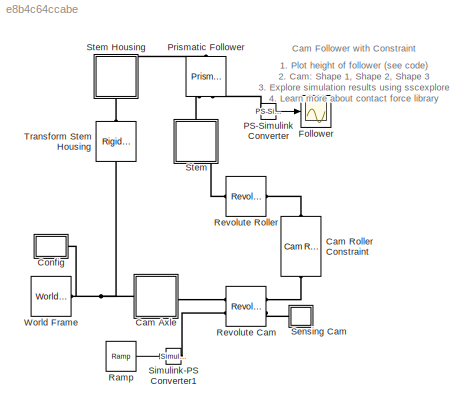
MODEL slx_e8b4c64ccabe
KIND model
CONFIG AbsTol = auto
CONFIG EnableMultiTasking = off
CONFIG FixedStep = auto
CONFIG MaxStep = auto
CONFIG MinStep = auto
CONFIG RelTol = 1e-3
CONFIG SampleTimeConstraint = Unconstrained
CONFIG Solver = VariableStepAuto
CONFIG SolverName = VariableStepAuto
CONFIG StartFcn = tic;
CONFIG StartTime = 0.0
CONFIG StopFcn = Elapsed_Sim_Time = toc;\ndisp(['Elapsed Sim Time = ' num2str(Elapsed_Sim_Time)]);\n
CONFIG StopTime = 4
WORKSPACE source: MATLAB code (in-file)
WORKSPACE code: hole_profile = 0.005*[cosd(linspace(0,360,100)); sind(linspace(0,360,100))]';
WORKSPACE N = 100
WORKSPACE roller_radius = 0.02
WORKSPACE q = linspace(1/N,1,N)*2*pi
WORKSPACE r = 4+sin(2*q)+0.3*cos(3*q)
WORKSPACE c = cos(q)
WORKSPACE s = sin(q)
WORKSPACE profile_irr_ellipse = [r'.*c' r'.*s']/100
WORKSPACE code: extrdat_irr_ellipse = [profile_irr_ellipse; flipud(hole_profile); profile_irr_ellipse(end,:)];
WORKSPACE dvec = linspace(-1,1,20)'
WORKSPACE side = 0.05
WORKSPACE profile_square = [...
WORKSPACE code: dvec -ones(length(dvec),1);...
WORKSPACE code: ones(length(dvec)-1,1) dvec(2:end);...
WORKSPACE code: flipud(dvec(1:end-1)) ones(length(dvec)-1,1);...
WORKSPACE code: -ones(length(dvec)-2,1) flipud(dvec(2:end-1))]*side/2;
WORKSPACE code: extrdat_square = [profile_square; flipud(hole_profile);profile_square(end,:)];
WORKSPACE angles = [0:359]'
WORKSPACE profile_snowflake = .004 * (12.5 + cosd(6 * (angles - 30))) .* [cosd(angles) sind(angles)]
WORKSPACE code: extrdat_snowflake = [flipud(profile_snowflake); hole_profile*14;profile_snowflake(1,:)];
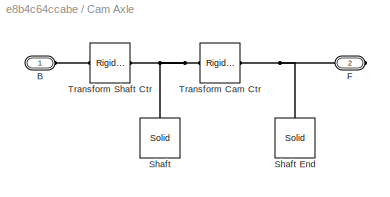
BLOCK [SubSystem] Cam Axle
  Ports = [0, 0, 0, 0, 0, 1, 1]
  RequestExecContextInheritance = off
BLOCK [PMIOPort] Cam Axle/B
  Side = Left
BLOCK [PMIOPort] Cam Axle/F
  Port = 2
  Side = Right
BLOCK [Reference] Cam Axle/Shaft  REF=sm_lib/Body Elements/Solid
  Ports = [0, 0, 0, 0, 0, 0, 1]
  SourceBlock = sm_lib/Body Elements/Solid
  SourceProductBaseCode = MS
  SourceProductName = Simscape Multibody
  SourceType = Solid
BLOCK [Reference] Cam Axle/Shaft End  REF=sm_lib/Body Elements/Solid
  Ports = [0, 0, 0, 0, 0, 0, 1]
  SourceBlock = sm_lib/Body Elements/Solid
  SourceProductBaseCode = MS
  SourceProductName = Simscape Multibody
  SourceType = Solid
BLOCK [Reference] Cam Axle/Transform Cam Ctr  REF=sm_lib/Frames and
Transforms/Rigid
Transform
  Ports = [0, 0, 0, 0, 0, 1, 1]
  SourceBlock = sm_lib/Frames and\nTransforms/Rigid\nTransform
  SourceProductBaseCode = MS
  SourceProductName = Simscape Multibody
  SourceType = Rigid\nTransform
BLOCK [Reference] Cam Axle/Transform Shaft Ctr  REF=sm_lib/Frames and
Transforms/Rigid
Transform
  Ports = [0, 0, 0, 0, 0, 1, 1]
  SourceBlock = sm_lib/Frames and\nTransforms/Rigid\nTransform
  SourceProductBaseCode = MS
  SourceProductName = Simscape Multibody
  SourceType = Rigid\nTransform
BLOCK [Reference] Cam Roller Constraint  REF=Contact_Forces_Lib/Constraints/Cam Roller
Constraint
  Ports = [0, 0, 0, 0, 0, 1, 1]
  SourceBlock = Contact_Forces_Lib/Constraints/Cam Roller\nConstraint
  SourceProductName = Simscape Multibody Contact Forces Library
  SourceType = Cam Roller Constraint
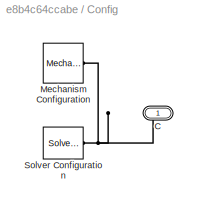
BLOCK [SubSystem] Config
  Ports = [0, 0, 0, 0, 0, 0, 1]
  RequestExecContextInheritance = off
BLOCK [PMIOPort] Config/C
  Side = Right
BLOCK [Reference] Config/Mechanism Configuration  REF=sm_lib/Utilities/Mechanism
Configuration
  Ports = [0, 0, 0, 0, 0, 0, 1]
  SourceBlock = sm_lib/Utilities/Mechanism\nConfiguration
  SourceProductBaseCode = MS
  SourceProductName = Simscape Multibody
  SourceType = Mechanism\nConfiguration
BLOCK [Reference] Config/Solver Configuration  REF=nesl_utility/Solver
Configuration
  Ports = [0, 0, 0, 0, 0, 0, 1]
  SourceBlock = nesl_utility/Solver\nConfiguration
  SourceProductBaseCode = SS
  SourceProductName = Simscape
  SourceType = Solver\nConfiguration
BLOCK [Scope] Follower
  Floating = off
  NumInputPorts = 1
  Ports = [1]
  ScopeSpecificationString = Simulink.scopes.TimeScopeBlockCfg('CurrentConfiguration', extmgr.ConfigurationSet(extmgr.Configuration('Core','General UI',true),extmgr.Configuration('Core','Source UI',true),extmgr.Configuration('Sources','WiredSimulink',true,'DataLoggingVariableName','ScopeData1'),extmgr.Configuration('Visuals','Time Domain',true,'SerializedDisplays',{struct('MinYLimReal','-0.02','MaxYLimReal','-0.01','YLabelRea...<+1424ch>
BLOCK [Reference] PS-Simulink Converter  REF=nesl_utility/PS-Simulink
Converter
  Ports = [0, 1, 0, 0, 0, 1]
  SourceBlock = nesl_utility/PS-Simulink\nConverter
  SourceProductBaseCode = SS
  SourceProductName = Simscape
  SourceType = PS-Simulink\nConverter
BLOCK [Reference] Prismatic Follower  REF=sm_lib/Joints/Prismatic
Joint
  Ports = [0, 0, 0, 0, 0, 1, 2]
  SourceBlock = sm_lib/Joints/Prismatic\nJoint
  SourceProductBaseCode = MS
  SourceProductName = Simscape Multibody
  SourceType = Prismatic\nJoint
BLOCK [Reference] Ramp  REF=simulink/Sources/Ramp
  Ports = [0, 1]
  SourceBlock = simulink/Sources/Ramp
  SourceProductBaseCode = SL
  SourceProductName = Simulink
  SourceType = Ramp
BLOCK [Reference] Revolute Cam   REF=sm_lib/Joints/Revolute Joint
  Ports = [0, 0, 0, 0, 0, 2, 2]
  SourceBlock = sm_lib/Joints/Revolute Joint
  SourceProductBaseCode = MS
  SourceProductName = Simscape Multibody
  SourceType = Revolute Joint
BLOCK [Reference] Revolute Roller  REF=sm_lib/Joints/Revolute Joint
  Ports = [0, 0, 0, 0, 0, 1, 1]
  SourceBlock = sm_lib/Joints/Revolute Joint
  SourceProductBaseCode = MS
  SourceProductName = Simscape Multibody
  SourceType = Revolute Joint
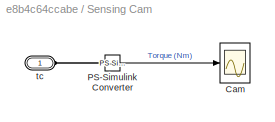
BLOCK [SubSystem] Sensing Cam
  Ports = [0, 0, 0, 0, 0, 1]
  RequestExecContextInheritance = off
BLOCK [Scope] Sensing Cam/Cam
  Floating = off
  NumInputPorts = 1
  Ports = [1]
  ScopeSpecificationString = Simulink.scopes.TimeScopeBlockCfg('CurrentConfiguration', extmgr.ConfigurationSet(extmgr.Configuration('Core','General UI',true),extmgr.Configuration('Core','Source UI',true),extmgr.Configuration('Sources','WiredSimulink',true),extmgr.Configuration('Visuals','Time Domain',true,'SerializedDisplays',{struct('MinYLimReal','-0.0062','MaxYLimReal','0.0055','YLabelReal','','MinYLimMag','0.00000','MaxYLi...<+1385ch>
BLOCK [Reference] Sensing Cam/PS-Simulink Converter  REF=nesl_utility/PS-Simulink
Converter
  Ports = [0, 1, 0, 0, 0, 1]
  SourceBlock = nesl_utility/PS-Simulink\nConverter
  SourceProductBaseCode = SS
  SourceProductName = Simscape
  SourceType = PS-Simulink\nConverter
BLOCK [PMIOPort] Sensing Cam/tc
  Side = Left
BLOCK [Reference] Simulink-PS Converter1  REF=nesl_utility/Simulink-PS
Converter
  Ports = [1, 0, 0, 0, 0, 0, 1]
  SourceBlock = nesl_utility/Simulink-PS\nConverter
  SourceProductBaseCode = SS
  SourceProductName = Simscape
  SourceType = Simulink-PS\nConverter
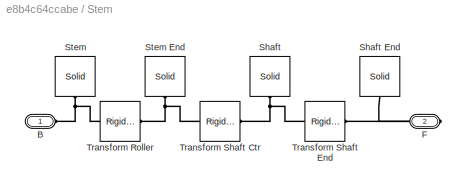
BLOCK [SubSystem] Stem
  Ports = [0, 0, 0, 0, 0, 1, 1]
  RequestExecContextInheritance = off
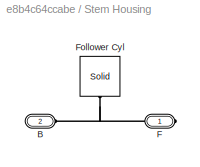
BLOCK [SubSystem] Stem Housing
  Ports = [0, 0, 0, 0, 0, 1, 1]
  RequestExecContextInheritance = off
BLOCK [PMIOPort] Stem Housing/B
  Port = 2
  Side = Left
BLOCK [PMIOPort] Stem Housing/F
  Side = Right
BLOCK [Reference] Stem Housing/Follower Cyl  REF=sm_lib/Body Elements/Solid
  Ports = [0, 0, 0, 0, 0, 0, 1]
  SourceBlock = sm_lib/Body Elements/Solid
  SourceProductBaseCode = MS
  SourceProductName = Simscape Multibody
  SourceType = Solid
BLOCK [PMIOPort] Stem/B
  Side = Left
BLOCK [PMIOPort] Stem/F
  Port = 2
  Side = Right
BLOCK [Reference] Stem/Shaft  REF=sm_lib/Body Elements/Solid
  Ports = [0, 0, 0, 0, 0, 0, 1]
  SourceBlock = sm_lib/Body Elements/Solid
  SourceProductBaseCode = MS
  SourceProductName = Simscape Multibody
  SourceType = Solid
BLOCK [Reference] Stem/Shaft End  REF=sm_lib/Body Elements/Solid
  Ports = [0, 0, 0, 0, 0, 0, 1]
  SourceBlock = sm_lib/Body Elements/Solid
  SourceProductBaseCode = MS
  SourceProductName = Simscape Multibody
  SourceType = Solid
BLOCK [Reference] Stem/Stem  REF=sm_lib/Body Elements/Solid
  Ports = [0, 0, 0, 0, 0, 0, 1]
  SourceBlock = sm_lib/Body Elements/Solid
  SourceProductBaseCode = MS
  SourceProductName = Simscape Multibody
  SourceType = Solid
BLOCK [Reference] Stem/Stem End  REF=sm_lib/Body Elements/Solid
  Ports = [0, 0, 0, 0, 0, 0, 1]
  SourceBlock = sm_lib/Body Elements/Solid
  SourceProductBaseCode = MS
  SourceProductName = Simscape Multibody
  SourceType = Solid
BLOCK [Reference] Stem/Transform Roller  REF=sm_lib/Frames and
Transforms/Rigid
Transform
  Ports = [0, 0, 0, 0, 0, 1, 1]
  SourceBlock = sm_lib/Frames and\nTransforms/Rigid\nTransform
  SourceProductBaseCode = MS
  SourceProductName = Simscape Multibody
  SourceType = Rigid\nTransform
BLOCK [Reference] Stem/Transform Shaft Ctr  REF=sm_lib/Frames and
Transforms/Rigid
Transform
  Ports = [0, 0, 0, 0, 0, 1, 1]
  SourceBlock = sm_lib/Frames and\nTransforms/Rigid\nTransform
  SourceProductBaseCode = MS
  SourceProductName = Simscape Multibody
  SourceType = Rigid\nTransform
BLOCK [Reference] Stem/Transform Shaft End  REF=sm_lib/Frames and
Transforms/Rigid
Transform
  Ports = [0, 0, 0, 0, 0, 1, 1]
  SourceBlock = sm_lib/Frames and\nTransforms/Rigid\nTransform
  SourceProductBaseCode = MS
  SourceProductName = Simscape Multibody
  SourceType = Rigid\nTransform
BLOCK [Reference] Transform Stem Housing  REF=sm_lib/Frames and
Transforms/Rigid
Transform
  Ports = [0, 0, 0, 0, 0, 1, 1]
  SourceBlock = sm_lib/Frames and\nTransforms/Rigid\nTransform
  SourceProductBaseCode = MS
  SourceProductName = Simscape Multibody
  SourceType = Rigid\nTransform
BLOCK [Reference] World Frame  REF=sm_lib/Frames and
Transforms/World Frame
  Ports = [0, 0, 0, 0, 0, 0, 1]
  SourceBlock = sm_lib/Frames and\nTransforms/World Frame
  SourceProductBaseCode = MS
  SourceProductName = Simscape Multibody
  SourceType = World Frame
ANNOTATION (root): 1. Plot height of follower ( see code ) 2. Cam: Shape 1 , Shape 2 , Shape 3 3. Explore simulation results using sscexplore 4. Learn more about contact force library
ANNOTATION (root): Cam Follower with Constraint
LINE PS-Simulink Converter:1 -> Follower:1
LINE Ramp:1 -> Simulink-PS Converter1:1
LINE Sensing Cam/PS-Simulink Converter:1 -> Sensing Cam/Cam:1
PLINE Cam Axle/B:RConn1 -- Cam Axle/Transform Shaft Ctr:LConn1
PNET net1: Cam Axle/F:RConn1 -- Cam Axle/Shaft End:RConn1 -- Cam Axle/Transform Cam Ctr:RConn1
PNET net2: Cam Axle/Shaft:RConn1 -- Cam Axle/Transform Cam Ctr:LConn1 -- Cam Axle/Transform Shaft Ctr:RConn1
PNET net3: Cam Axle:LConn1 -- Config:RConn1 -- Transform Stem Housing:LConn1 -- World Frame:RConn1
PLINE Cam Axle:RConn1 -- Revolute Cam :LConn1
PLINE Cam Roller Constraint:LConn1 -- Revolute Roller:RConn1
PLINE Cam Roller Constraint:RConn1 -- Revolute Cam :RConn1
PNET net4: Config/C:RConn1 -- Config/Mechanism Configuration:RConn1 -- Config/Solver Configuration:RConn1
PLINE PS-Simulink Converter:LConn1 -- Prismatic Follower:RConn2
PLINE Prismatic Follower:LConn1 -- Stem Housing:RConn1
PLINE Prismatic Follower:RConn1 -- Stem:LConn1
PLINE Revolute Cam :LConn2 -- Simulink-PS Converter1:RConn1
PLINE Revolute Cam :RConn2 -- Sensing Cam:LConn1
PLINE Revolute Roller:LConn1 -- Stem:RConn1
PLINE Sensing Cam/PS-Simulink Converter:LConn1 -- Sensing Cam/tc:RConn1
PNET net5: Stem Housing/B:RConn1 -- Stem Housing/F:RConn1 -- Stem Housing/Follower Cyl:RConn1
PLINE Stem Housing:LConn1 -- Transform Stem Housing:RConn1
PNET net6: Stem/B:RConn1 -- Stem/Stem:RConn1 -- Stem/Transform Roller:LConn1
PNET net7: Stem/F:RConn1 -- Stem/Shaft End:RConn1 -- Stem/Transform Shaft End:RConn1
PNET net8: Stem/Shaft:RConn1 -- Stem/Transform Shaft Ctr:RConn1 -- Stem/Transform Shaft End:LConn1
PNET net9: Stem/Stem End:RConn1 -- Stem/Transform Roller:RConn1 -- Stem/Transform Shaft Ctr:LConn1
note: PNET lines group multi-terminal physical nets as a canonical sorted terminal list (undirected conserving connections); 2-terminal nets keep the pairwise PLINE form
